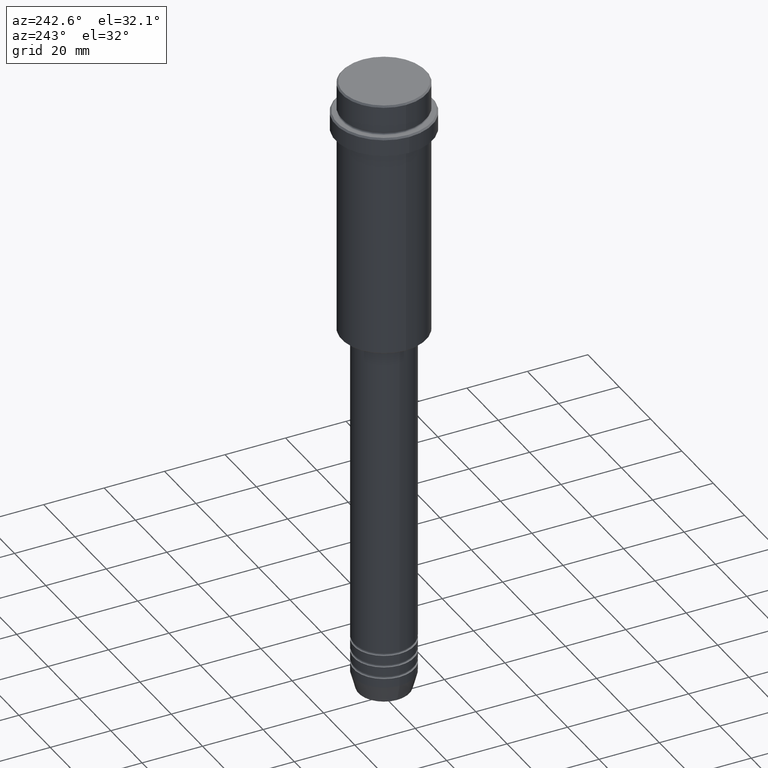
[diagram: clean part render]
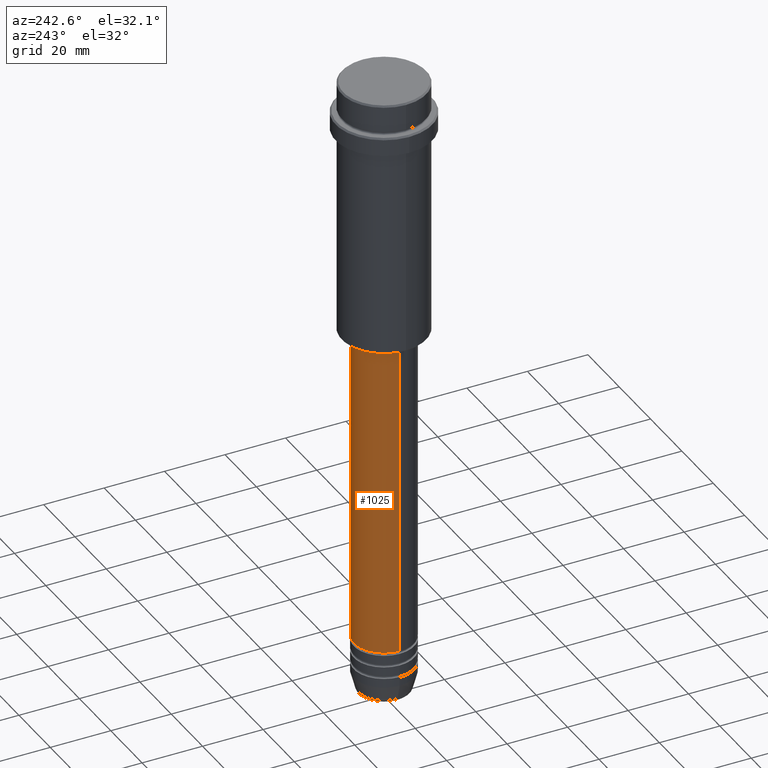
[diagram: same view with one face highlighted and labeled with its STEP entity id]
A machine part, auxiliary view. The second image highlights one B-rep face of the part: STEP entity #1025.
In plain terms, the highlighted cylindrical surface (edge-blend (fillet) strip) has radius 10 mm, axis along (-0, -0, 1).
Its self-contained STEP definition (entity closure, byte-faithful):
#113 = AXIS2_PLACEMENT_3D ( 'NONE', #633, #307, #956 ) ;
#121 = ORIENTED_EDGE ( 'NONE', *, *, #1411, .F. ) ;
#158 = VERTEX_POINT ( 'NONE', #636 ) ;
#237 = ORIENTED_EDGE ( 'NONE', *, *, #294, .F. ) ;
#280 = VECTOR ( 'NONE', #1124, 1000.000000000000000 ) ;
#294 = EDGE_CURVE ( 'NONE', #804, #501, #676, .T. ) ;
#295 = CARTESIAN_POINT ( 'NONE',  ( 10.00000000000000000, 0.000000000000000000, -191.9999999999999147 ) ) ;
#307 = DIRECTION ( 'NONE',  ( -0.000000000000000000, -0.000000000000000000, 1.000000000000000000 ) ) ;
#323 = EDGE_LOOP ( 'NONE', ( #821, #578, #121, #237 ) ) ;
#354 = AXIS2_PLACEMENT_3D ( 'NONE', #567, #1008, #1139 ) ;
#363 = DIRECTION ( 'NONE',  ( 1.000000000000000000, 0.000000000000000000, 0.000000000000000000 ) ) ;
#406 = EDGE_CURVE ( 'NONE', #1026, #158, #1076, .T. ) ;
#440 = DIRECTION ( 'NONE',  ( -0.000000000000000000, -0.000000000000000000, 1.000000000000000000 ) ) ;
#459 = VECTOR ( 'NONE', #440, 1000.000000000000000 ) ;
#501 = VERTEX_POINT ( 'NONE', #944 ) ;
#508 = EDGE_CURVE ( 'NONE', #804, #1026, #1343, .T. ) ;
#567 = CARTESIAN_POINT ( 'NONE',  ( 0.000000000000000000, 0.000000000000000000, 0.000000000000000000 ) ) ;
#578 = ORIENTED_EDGE ( 'NONE', *, *, #406, .T. ) ;
#633 = CARTESIAN_POINT ( 'NONE',  ( 0.000000000000000000, 0.000000000000000000, -191.9999999999999147 ) ) ;
#636 = CARTESIAN_POINT ( 'NONE',  ( -10.00000000000000178, 1.224646799147353454E-15, -87.00000000000000000 ) ) ;
#676 = LINE ( 'NONE', #753, #459 ) ;
#705 = FACE_OUTER_BOUND ( 'NONE', #323, .T. ) ;
#753 = CARTESIAN_POINT ( 'NONE',  ( 10.00000000000000178, 0.000000000000000000, 0.000000000000000000 ) ) ;
#804 = VERTEX_POINT ( 'NONE', #295 ) ;
#821 = ORIENTED_EDGE ( 'NONE', *, *, #508, .T. ) ;
#902 = CARTESIAN_POINT ( 'NONE',  ( 0.000000000000000000, 0.000000000000000000, -87.00000000000000000 ) ) ;
#944 = CARTESIAN_POINT ( 'NONE',  ( 10.00000000000000178, 0.000000000000000000, -87.00000000000000000 ) ) ;
#956 = DIRECTION ( 'NONE',  ( 1.000000000000000000, 0.000000000000000000, 0.000000000000000000 ) ) ;
#1008 = DIRECTION ( 'NONE',  ( -0.000000000000000000, -0.000000000000000000, 1.000000000000000000 ) ) ;
#1017 = DIRECTION ( 'NONE',  ( -0.000000000000000000, -0.000000000000000000, 1.000000000000000000 ) ) ;
#1025 = ADVANCED_FACE ( 'NONE', ( #705 ), #1224, .T. ) ;
#1026 = VERTEX_POINT ( 'NONE', #1242 ) ;
#1076 = LINE ( 'NONE', #1207, #280 ) ;
#1124 = DIRECTION ( 'NONE',  ( -0.000000000000000000, -0.000000000000000000, 1.000000000000000000 ) ) ;
#1139 = DIRECTION ( 'NONE',  ( 1.000000000000000000, 0.000000000000000000, 0.000000000000000000 ) ) ;
#1182 = AXIS2_PLACEMENT_3D ( 'NONE', #902, #1017, #363 ) ;
#1207 = CARTESIAN_POINT ( 'NONE',  ( -10.00000000000000178, 1.224646799147353454E-15, 0.000000000000000000 ) ) ;
#1224 = CYLINDRICAL_SURFACE ( 'NONE', #354, 10.00000000000000178 ) ;
#1242 = CARTESIAN_POINT ( 'NONE',  ( -10.00000000000000000, 1.224646799147353256E-15, -191.9999999999999147 ) ) ;
#1252 = CIRCLE ( 'NONE', #1182, 10.00000000000000178 ) ;
#1343 = CIRCLE ( 'NONE', #113, 10.00000000000000000 ) ;
#1411 = EDGE_CURVE ( 'NONE', #501, #158, #1252, .T. ) ;